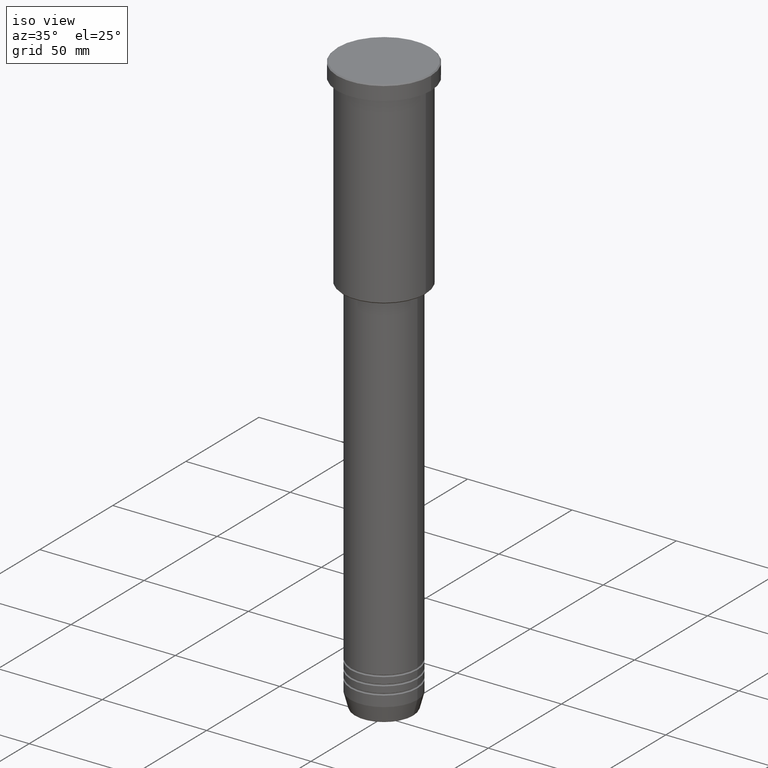
[diagram: clean part render]
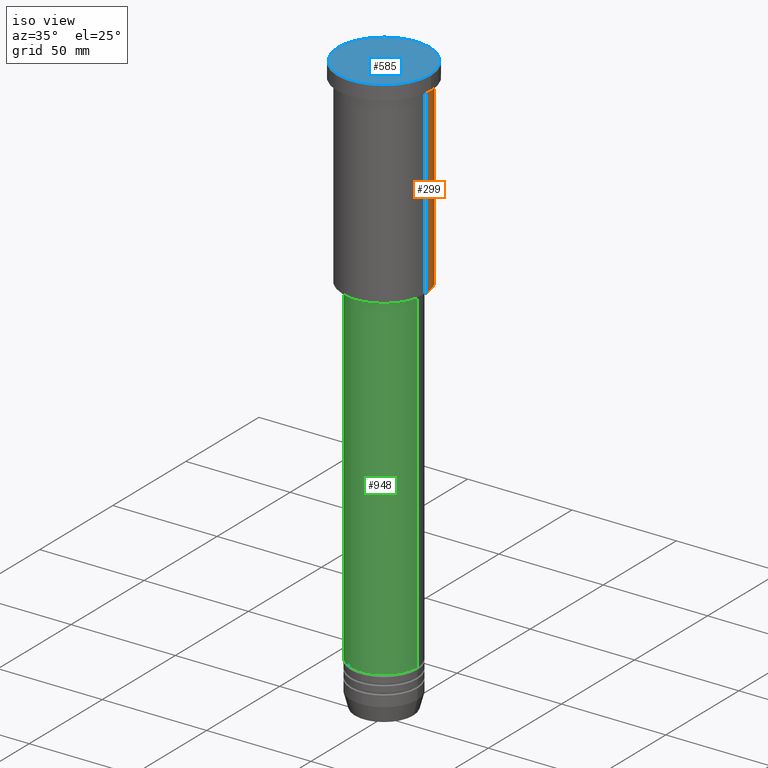
[diagram: same view with three faces highlighted in distinct colors, each labeled with its STEP entity id]
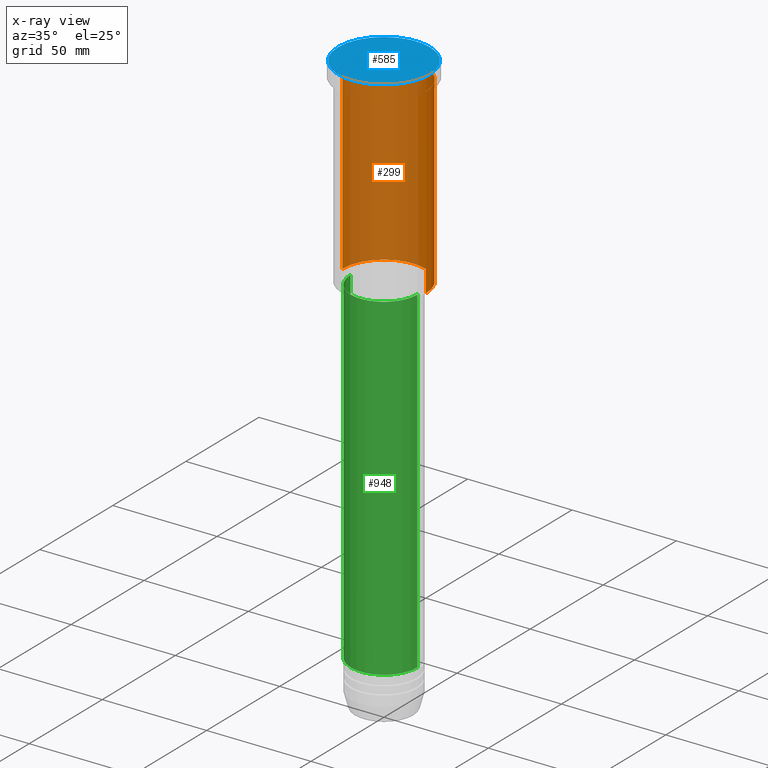
[diagram: x-ray of the same camera — body ghosted, the three highlighted faces saturated]
A machine part, iso view with three faces highlighted in distinct colors.
The next image is the same camera in x-ray (body ghosted, the three faces saturated) — at least one of them is partly hidden behind the body in this view.
Their STEP definitions:

[orange] entity #299 — the highlighted cylindrical surface (partial cylindrical patch) has radius 20 mm, axis along (-0, -0, 1).
#6 = LINE ( 'NONE', #557, #529 ) ;
#28 = CARTESIAN_POINT ( 'NONE',  ( 0.000000000000000000, 0.000000000000000000, -7.999999999999994671 ) ) ;
#123 = AXIS2_PLACEMENT_3D ( 'NONE', #28, #1138, #1116 ) ;
#146 = CARTESIAN_POINT ( 'NONE',  ( 20.00000000000000355, 0.000000000000000000, -95.49999999999997158 ) ) ;
#196 = CYLINDRICAL_SURFACE ( 'NONE', #763, 20.00000000000000355 ) ;
#209 = ORIENTED_EDGE ( 'NONE', *, *, #514, .T. ) ;
#214 = LINE ( 'NONE', #397, #1051 ) ;
#299 = ADVANCED_FACE ( 'NONE', ( #891 ), #196, .T. ) ;
#319 = DIRECTION ( 'NONE',  ( -0.000000000000000000, -0.000000000000000000, 1.000000000000000000 ) ) ;
#336 = CARTESIAN_POINT ( 'NONE',  ( 0.000000000000000000, 0.000000000000000000, 0.000000000000000000 ) ) ;
#368 = CIRCLE ( 'NONE', #123, 20.00000000000000000 ) ;
#397 = CARTESIAN_POINT ( 'NONE',  ( -20.00000000000000355, 2.449293598294706907E-15, 0.000000000000000000 ) ) ;
#402 = VERTEX_POINT ( 'NONE', #988 ) ;
#448 = DIRECTION ( 'NONE',  ( -0.000000000000000000, -0.000000000000000000, 1.000000000000000000 ) ) ;
#454 = CARTESIAN_POINT ( 'NONE',  ( 20.00000000000000000, 0.000000000000000000, -7.999999999999994671 ) ) ;
#509 = EDGE_CURVE ( 'NONE', #1112, #915, #368, .T. ) ;
#514 = EDGE_CURVE ( 'NONE', #548, #402, #1168, .T. ) ;
#518 = EDGE_CURVE ( 'NONE', #402, #915, #214, .T. ) ;
#529 = VECTOR ( 'NONE', #448, 1000.000000000000000 ) ;
#548 = VERTEX_POINT ( 'NONE', #146 ) ;
#557 = CARTESIAN_POINT ( 'NONE',  ( 20.00000000000000355, 0.000000000000000000, 0.000000000000000000 ) ) ;
#598 = ORIENTED_EDGE ( 'NONE', *, *, #509, .F. ) ;
#751 = DIRECTION ( 'NONE',  ( -0.000000000000000000, -0.000000000000000000, 1.000000000000000000 ) ) ;
#763 = AXIS2_PLACEMENT_3D ( 'NONE', #336, #875, #789 ) ;
#778 = EDGE_LOOP ( 'NONE', ( #209, #1157, #598, #785 ) ) ;
#785 = ORIENTED_EDGE ( 'NONE', *, *, #877, .F. ) ;
#789 = DIRECTION ( 'NONE',  ( 1.000000000000000000, 0.000000000000000000, 0.000000000000000000 ) ) ;
#840 = DIRECTION ( 'NONE',  ( -1.000000000000000000, 0.000000000000000000, 0.000000000000000000 ) ) ;
#865 = CARTESIAN_POINT ( 'NONE',  ( 0.000000000000000000, 0.000000000000000000, -95.49999999999997158 ) ) ;
#875 = DIRECTION ( 'NONE',  ( -0.000000000000000000, -0.000000000000000000, 1.000000000000000000 ) ) ;
#877 = EDGE_CURVE ( 'NONE', #548, #1112, #6, .T. ) ;
#891 = FACE_OUTER_BOUND ( 'NONE', #778, .T. ) ;
#915 = VERTEX_POINT ( 'NONE', #1094 ) ;
#988 = CARTESIAN_POINT ( 'NONE',  ( -20.00000000000000355, 2.449293598294706907E-15, -95.49999999999997158 ) ) ;
#1051 = VECTOR ( 'NONE', #751, 1000.000000000000000 ) ;
#1094 = CARTESIAN_POINT ( 'NONE',  ( -20.00000000000000000, 2.449293598294706513E-15, -7.999999999999994671 ) ) ;
#1104 = AXIS2_PLACEMENT_3D ( 'NONE', #865, #319, #840 ) ;
#1112 = VERTEX_POINT ( 'NONE', #454 ) ;
#1116 = DIRECTION ( 'NONE',  ( 1.000000000000000000, 0.000000000000000000, 0.000000000000000000 ) ) ;
#1138 = DIRECTION ( 'NONE',  ( -0.000000000000000000, -0.000000000000000000, 1.000000000000000000 ) ) ;
#1157 = ORIENTED_EDGE ( 'NONE', *, *, #518, .T. ) ;
#1168 = CIRCLE ( 'NONE', #1104, 20.00000000000000355 ) ;

[blue] entity #585 — the highlighted planar face has unit normal (0, -0, 1).
#42 = CARTESIAN_POINT ( 'NONE',  ( 0.000000000000000000, 0.000000000000000000, 0.000000000000000000 ) ) ;
#67 = ORIENTED_EDGE ( 'NONE', *, *, #586, .T. ) ;
#74 = VERTEX_POINT ( 'NONE', #499 ) ;
#77 = VERTEX_POINT ( 'NONE', #1026 ) ;
#139 = CARTESIAN_POINT ( 'NONE',  ( 0.000000000000000000, 0.000000000000000000, 0.000000000000000000 ) ) ;
#230 = PLANE ( 'NONE',  #519 ) ;
#332 = AXIS2_PLACEMENT_3D ( 'NONE', #42, #860, #788 ) ;
#499 = CARTESIAN_POINT ( 'NONE',  ( -22.00000000000004619, 0.000000000000000000, 0.000000000000000000 ) ) ;
#519 = AXIS2_PLACEMENT_3D ( 'NONE', #139, #772, #1108 ) ;
#570 = AXIS2_PLACEMENT_3D ( 'NONE', #984, #886, #803 ) ;
#585 = ADVANCED_FACE ( 'NONE', ( #603 ), #230, .T. ) ;
#586 = EDGE_CURVE ( 'NONE', #77, #74, #652, .T. ) ;
#603 = FACE_OUTER_BOUND ( 'NONE', #619, .T. ) ;
#619 = EDGE_LOOP ( 'NONE', ( #755, #67 ) ) ;
#652 = CIRCLE ( 'NONE', #332, 22.00000000000004619 ) ;
#662 = CIRCLE ( 'NONE', #570, 22.00000000000004619 ) ;
#755 = ORIENTED_EDGE ( 'NONE', *, *, #1111, .T. ) ;
#772 = DIRECTION ( 'NONE',  ( 0.000000000000000000, -0.000000000000000000, 1.000000000000000000 ) ) ;
#788 = DIRECTION ( 'NONE',  ( 1.000000000000000000, 0.000000000000000000, 0.000000000000000000 ) ) ;
#803 = DIRECTION ( 'NONE',  ( 1.000000000000000000, 0.000000000000000000, 0.000000000000000000 ) ) ;
#860 = DIRECTION ( 'NONE',  ( -0.000000000000000000, -0.000000000000000000, 1.000000000000000000 ) ) ;
#886 = DIRECTION ( 'NONE',  ( -0.000000000000000000, -0.000000000000000000, 1.000000000000000000 ) ) ;
#984 = CARTESIAN_POINT ( 'NONE',  ( 0.000000000000000000, 0.000000000000000000, 0.000000000000000000 ) ) ;
#1026 = CARTESIAN_POINT ( 'NONE',  ( 22.00000000000004619, 2.724839128102864146E-15, 0.000000000000000000 ) ) ;
#1108 = DIRECTION ( 'NONE',  ( 1.000000000000000000, 0.000000000000000000, 0.000000000000000000 ) ) ;
#1111 = EDGE_CURVE ( 'NONE', #74, #77, #662, .T. ) ;

[green] entity #948 — the highlighted cylindrical surface (partial cylindrical patch) has radius 16 mm, axis along (-0, -0, 1).
#17 = DIRECTION ( 'NONE',  ( 1.000000000000000000, 0.000000000000000000, 0.000000000000000000 ) ) ;
#19 = AXIS2_PLACEMENT_3D ( 'NONE', #313, #233, #594 ) ;
#93 = EDGE_CURVE ( 'NONE', #251, #589, #137, .T. ) ;
#111 = EDGE_CURVE ( 'NONE', #246, #251, #536, .T. ) ;
#117 = ORIENTED_EDGE ( 'NONE', *, *, #111, .T. ) ;
#130 = CARTESIAN_POINT ( 'NONE',  ( 16.00000000000000000, 0.000000000000000000, 0.000000000000000000 ) ) ;
#137 = LINE ( 'NONE', #130, #893 ) ;
#172 = CARTESIAN_POINT ( 'NONE',  ( 16.00000000000000000, 0.000000000000000000, -258.5000000000000000 ) ) ;
#219 = CARTESIAN_POINT ( 'NONE',  ( -16.00000000000000000, 1.959434878635765131E-15, -97.00000000000002842 ) ) ;
#233 = DIRECTION ( 'NONE',  ( -0.000000000000000000, -0.000000000000000000, 1.000000000000000000 ) ) ;
#246 = VERTEX_POINT ( 'NONE', #438 ) ;
#251 = VERTEX_POINT ( 'NONE', #172 ) ;
#276 = EDGE_CURVE ( 'NONE', #1001, #589, #651, .T. ) ;
#313 = CARTESIAN_POINT ( 'NONE',  ( 0.000000000000000000, 0.000000000000000000, -258.5000000000000000 ) ) ;
#421 = CARTESIAN_POINT ( 'NONE',  ( 0.000000000000000000, 0.000000000000000000, -97.00000000000002842 ) ) ;
#438 = CARTESIAN_POINT ( 'NONE',  ( -16.00000000000000000, 1.959434878635765131E-15, -258.5000000000000000 ) ) ;
#486 = DIRECTION ( 'NONE',  ( -0.000000000000000000, -0.000000000000000000, 1.000000000000000000 ) ) ;
#536 = CIRCLE ( 'NONE', #19, 16.00000000000000000 ) ;
#589 = VERTEX_POINT ( 'NONE', #1054 ) ;
#591 = FACE_OUTER_BOUND ( 'NONE', #1130, .T. ) ;
#594 = DIRECTION ( 'NONE',  ( 1.000000000000000000, 0.000000000000000000, 0.000000000000000000 ) ) ;
#651 = CIRCLE ( 'NONE', #689, 16.00000000000000000 ) ;
#659 = CARTESIAN_POINT ( 'NONE',  ( 0.000000000000000000, 0.000000000000000000, 0.000000000000000000 ) ) ;
#689 = AXIS2_PLACEMENT_3D ( 'NONE', #421, #1155, #1172 ) ;
#699 = AXIS2_PLACEMENT_3D ( 'NONE', #659, #486, #17 ) ;
#745 = ORIENTED_EDGE ( 'NONE', *, *, #93, .T. ) ;
#756 = VECTOR ( 'NONE', #838, 1000.000000000000000 ) ;
#838 = DIRECTION ( 'NONE',  ( -0.000000000000000000, -0.000000000000000000, 1.000000000000000000 ) ) ;
#893 = VECTOR ( 'NONE', #1131, 1000.000000000000000 ) ;
#945 = CYLINDRICAL_SURFACE ( 'NONE', #699, 16.00000000000000000 ) ;
#948 = ADVANCED_FACE ( 'NONE', ( #591 ), #945, .T. ) ;
#983 = EDGE_CURVE ( 'NONE', #246, #1001, #1027, .T. ) ;
#1001 = VERTEX_POINT ( 'NONE', #219 ) ;
#1027 = LINE ( 'NONE', #1107, #756 ) ;
#1037 = ORIENTED_EDGE ( 'NONE', *, *, #276, .F. ) ;
#1054 = CARTESIAN_POINT ( 'NONE',  ( 16.00000000000000000, 0.000000000000000000, -97.00000000000002842 ) ) ;
#1107 = CARTESIAN_POINT ( 'NONE',  ( -16.00000000000000000, 1.959434878635765131E-15, 0.000000000000000000 ) ) ;
#1130 = EDGE_LOOP ( 'NONE', ( #1141, #117, #745, #1037 ) ) ;
#1131 = DIRECTION ( 'NONE',  ( -0.000000000000000000, -0.000000000000000000, 1.000000000000000000 ) ) ;
#1141 = ORIENTED_EDGE ( 'NONE', *, *, #983, .F. ) ;
#1155 = DIRECTION ( 'NONE',  ( -0.000000000000000000, -0.000000000000000000, 1.000000000000000000 ) ) ;
#1172 = DIRECTION ( 'NONE',  ( 1.000000000000000000, 0.000000000000000000, 0.000000000000000000 ) ) ;